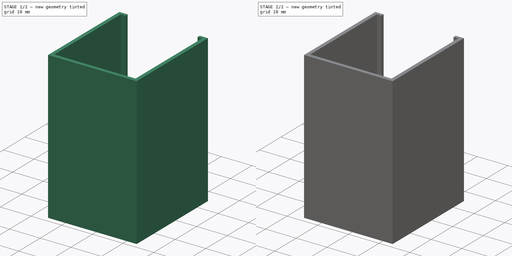
[diagram: build sequence overview — one tinted view per stage of 2, left to right]
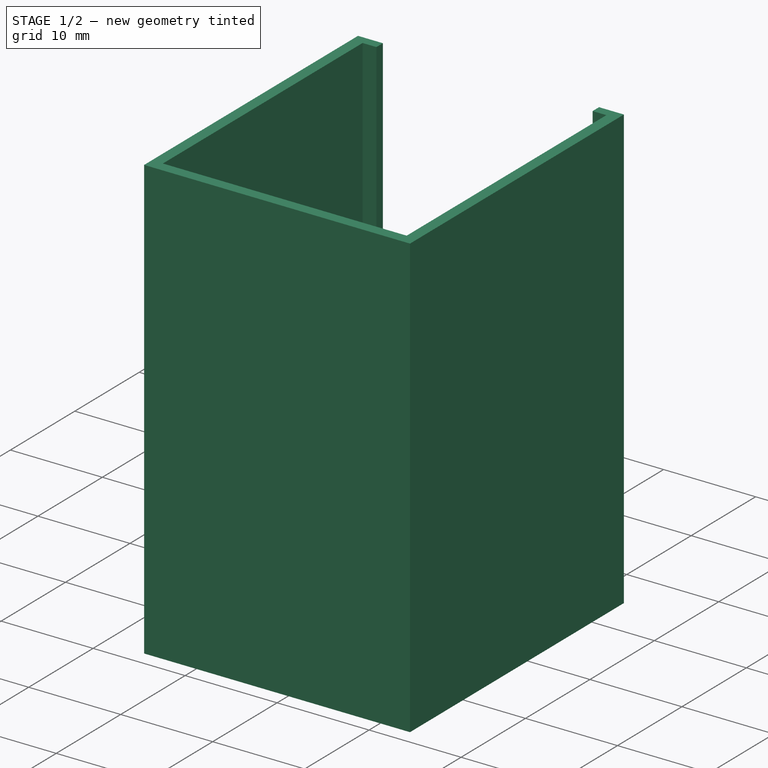
[diagram: stage 1 of 2 — iso view after this stage's code; geometry added in this stage tinted green]
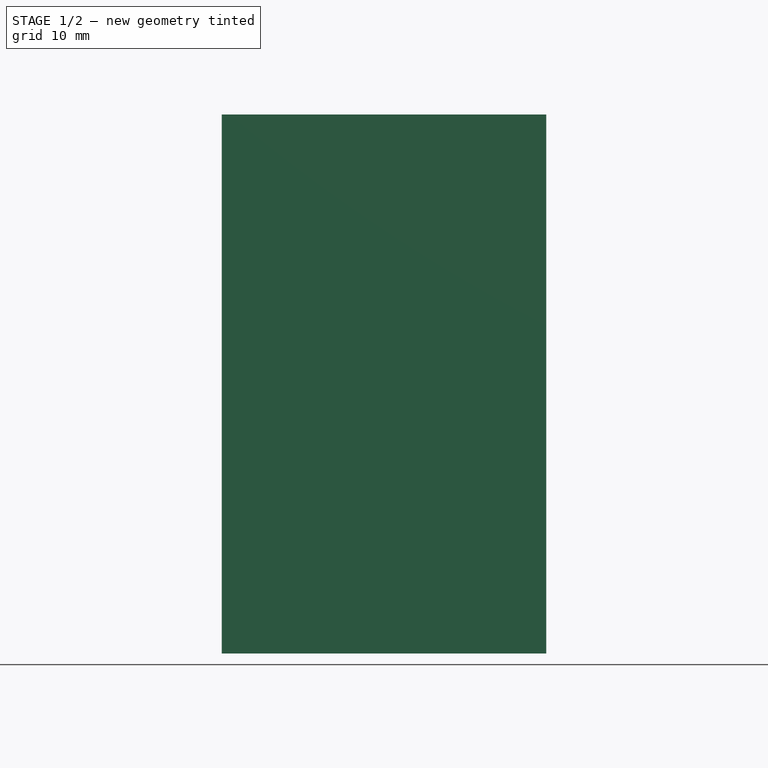
[diagram: stage 1 of 2 — front view after this stage's code; geometry added in this stage tinted green]
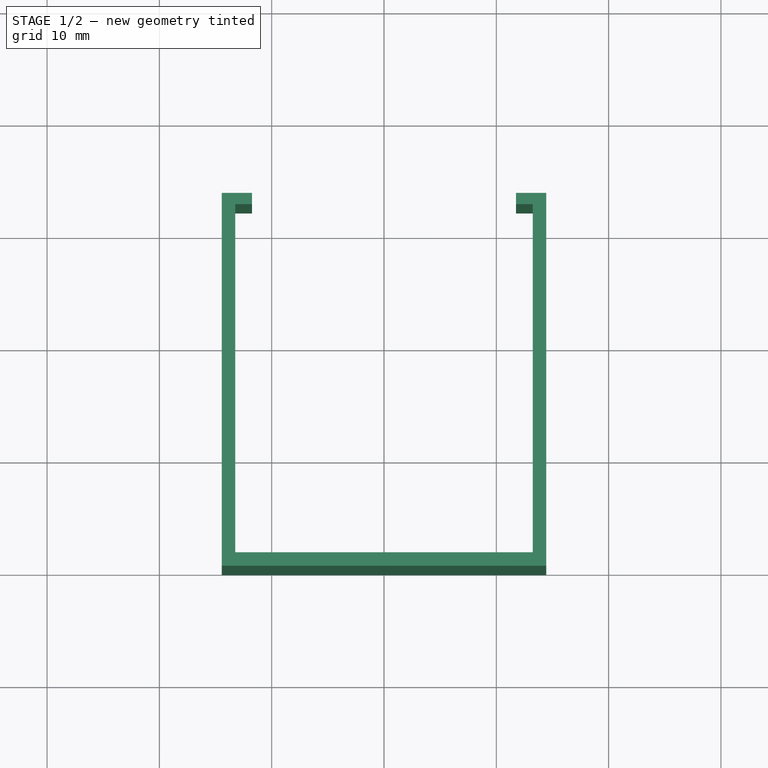
[diagram: stage 1 of 2 — top view after this stage's code; geometry added in this stage tinted green]
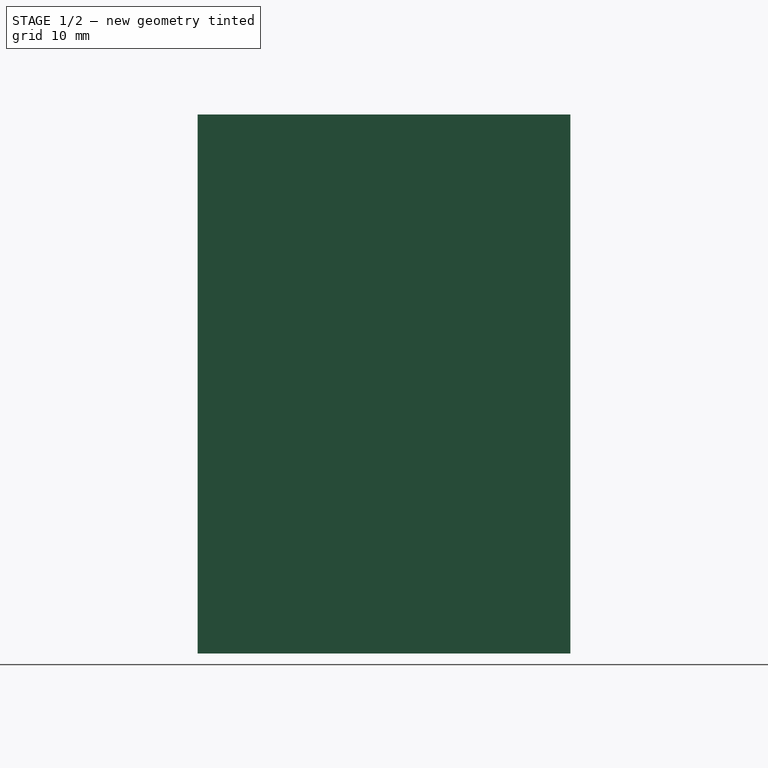
[diagram: stage 1 of 2 — right view after this stage's code; geometry added in this stage tinted green]
FCSTD DOCUMENT  (FreeCAD 0.20R29603 (Git))
Label: double_9v_taped_clip
License: All rights reserved
LicenseURL: http://en.wikipedia.org/wiki/All_rights_reserved
objects: Sketcher::SketchObject×2, PartDesign::Pad×2, PartDesign::Plane×1, PartDesign::Body×1
note: 8 computed .brp shape members not serialized (recipe doc carries the construction recipe); baked Part::Feature solids carry a one-line shape summary decoded from their .brp

FEATURE [Sketcher::SketchObject] Sketch
  FullyConstrained = true
  MapMode = 5
  Support = -> [XY_Plane]
  sketch-geometry (17):
    g0: LineSegment StartX=-14.45 StartY=0 StartZ=0 EndX=14.45 EndY=0 EndZ=0
    g1: LineSegment StartX=-14.45 StartY=0 StartZ=0 EndX=-14.45 EndY=33.2 EndZ=0
    g2: LineSegment StartX=14.45 StartY=0 StartZ=0 EndX=14.45 EndY=33.2 EndZ=0
    g3: LineSegment StartX=-14.45 StartY=33.2 StartZ=0 EndX=14.45 EndY=33.2 EndZ=0
    g4: LineSegment StartX=-13.25 StartY=33.2 StartZ=0 EndX=-13.25 EndY=1.2 EndZ=0
    g5: LineSegment StartX=13.25 StartY=33.2 StartZ=0 EndX=13.25 EndY=1.2 EndZ=0
    g6: LineSegment StartX=-13.25 StartY=1.2 StartZ=0 EndX=13.25 EndY=1.2 EndZ=0
    g7: LineSegment StartX=-14.45 StartY=33.2 StartZ=0 EndX=-13.25 EndY=33.2 EndZ=0
    g8: LineSegment StartX=14.45 StartY=33.2 StartZ=0 EndX=13.25 EndY=33.2 EndZ=0
    g9: LineSegment StartX=-13.25 StartY=32.2 StartZ=0 EndX=-13.25 EndY=1.2 EndZ=0
    g10: LineSegment StartX=13.25 StartY=32.2 StartZ=0 EndX=13.25 EndY=1.2 EndZ=0
    g11: LineSegment StartX=-13.25 StartY=33.2 StartZ=0 EndX=-11.75 EndY=33.2 EndZ=0
    g12: LineSegment StartX=-11.75 StartY=33.2 StartZ=0 EndX=-11.75 EndY=32.2 EndZ=0
    g13: LineSegment StartX=-11.75 StartY=32.2 StartZ=0 EndX=-13.25 EndY=32.2 EndZ=0
    g14: LineSegment StartX=13.25 StartY=33.2 StartZ=0 EndX=11.75 EndY=33.2 EndZ=0
    g15: LineSegment StartX=11.75 StartY=33.2 StartZ=0 EndX=11.75 EndY=32.2 EndZ=0
    g16: LineSegment StartX=11.75 StartY=32.2 StartZ=0 EndX=13.25 EndY=32.2 EndZ=0
  constraints (47):
    c: PointOnObject(g0,g-1)
    c: Symmetric(g0,g0,g-1)
    c: Coincident(g1,g0)
    c: Vertical(g1)
    c: Coincident(g2,g0)
    c: Vertical(g2)
    c: Coincident(g3,g1)
    c: Horizontal(g3)
    c: Coincident(g3,g2)
    c: PointOnObject(g4,g3)
    c: Vertical(g4)
    c: PointOnObject(g5,g3)
    c: Vertical(g5)
    c: Coincident(g6,g4)
    c: Coincident(g6,g5)
    c: Horizontal(g6)
    c: Distance(g4,g1) = 1.2
    c: Distance(g4,g5) = 26.5
    c: Coincident(g7,g1)
    c: Coincident(g7,g4)
    c: Coincident(g8,g2)
    c: Coincident(g8,g5)
    c: PointOnObject(g9,g4)
    c: PointOnObject(g10,g5)
    c: Distance(g6,g0) = 1.2
    c: Coincident(g9,g6)
    c: Coincident(g10,g6)
    c: Distance(g9) = 31
    c: Coincident(g7,g11)
    c: PointOnObject(g11,g3)
    c: Coincident(g11,g12)
    c: Vertical(g12)
    c: Coincident(g12,g13)
    c: Coincident(g13,g9)
    c: Horizontal(g13)
    c: Coincident(g8,g14)
    c: PointOnObject(g14,g3)
    c: Coincident(g14,g15)
    c: Vertical(g15)
    c: Coincident(g15,g16)
    c: Coincident(g16,g10)
    c: Horizontal(g16)
    c: Equal(g8,g7)
    c: Equal(g11,g14)
    c: Distance(g11) = 1.5
    c: Distance(g12) = 1
    c: Equal(g12,g15)
FEATURE [PartDesign::Pad] Pad  label="main_clip"
  Direction = (0,0,1)
  Length = 48
  Length2 = 10
  Profile = -> Sketch
  ReferenceAxis = -> Sketch [N_Axis]
  Type = 0
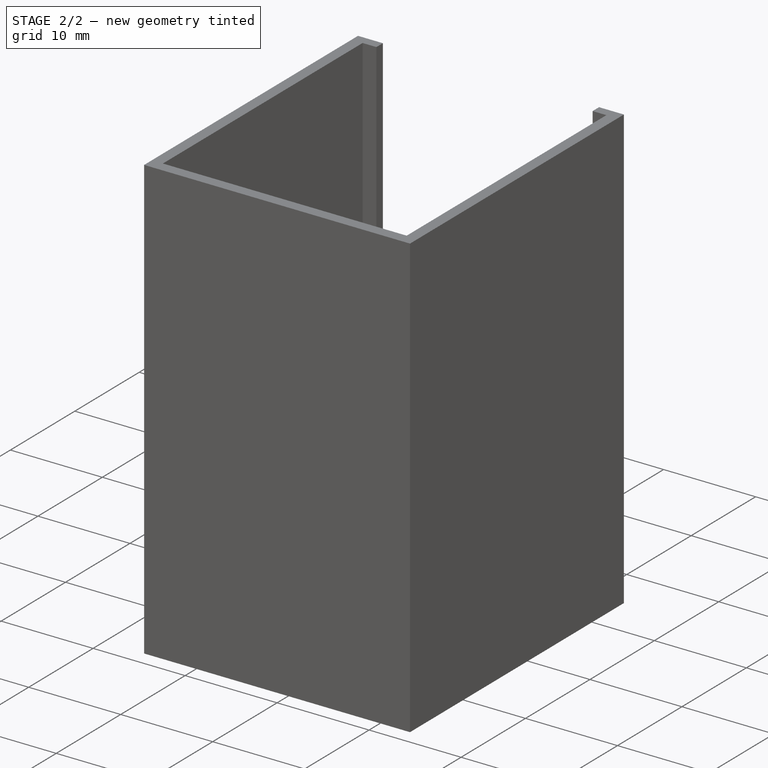
[diagram: stage 2 of 2 — iso view after this stage's code; geometry added in this stage tinted green]
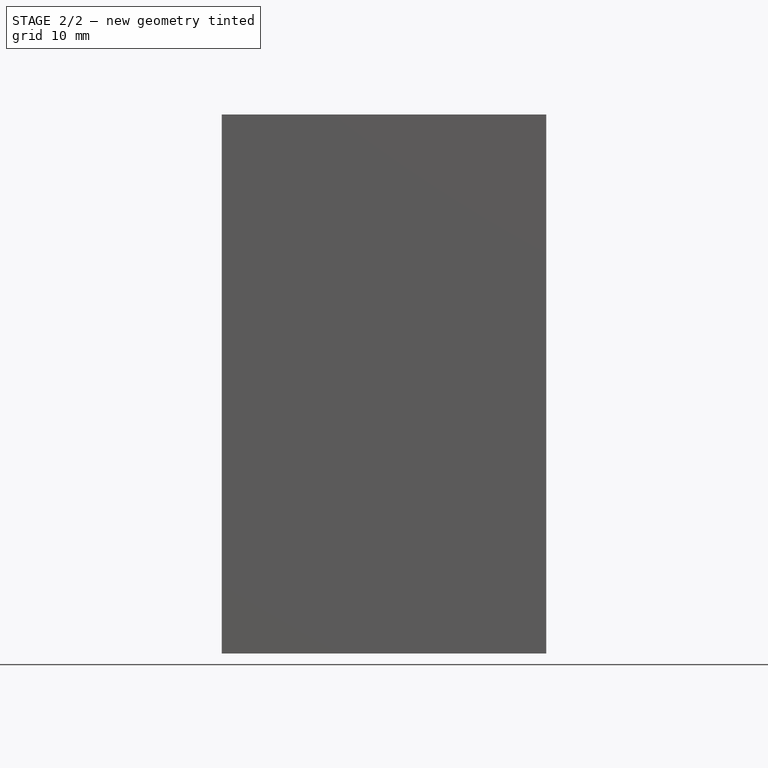
[diagram: stage 2 of 2 — front view after this stage's code; geometry added in this stage tinted green]
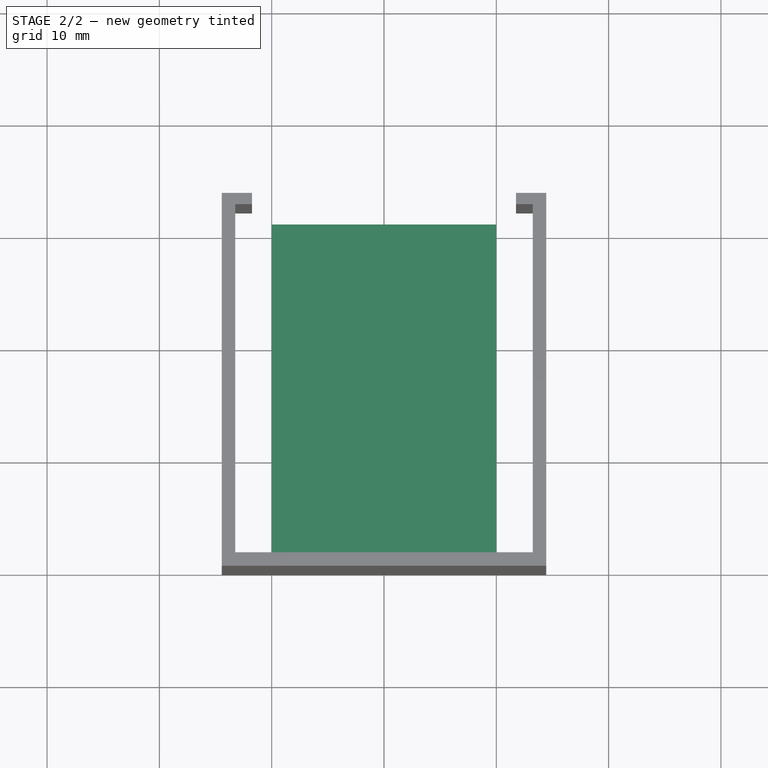
[diagram: stage 2 of 2 — top view after this stage's code; geometry added in this stage tinted green]
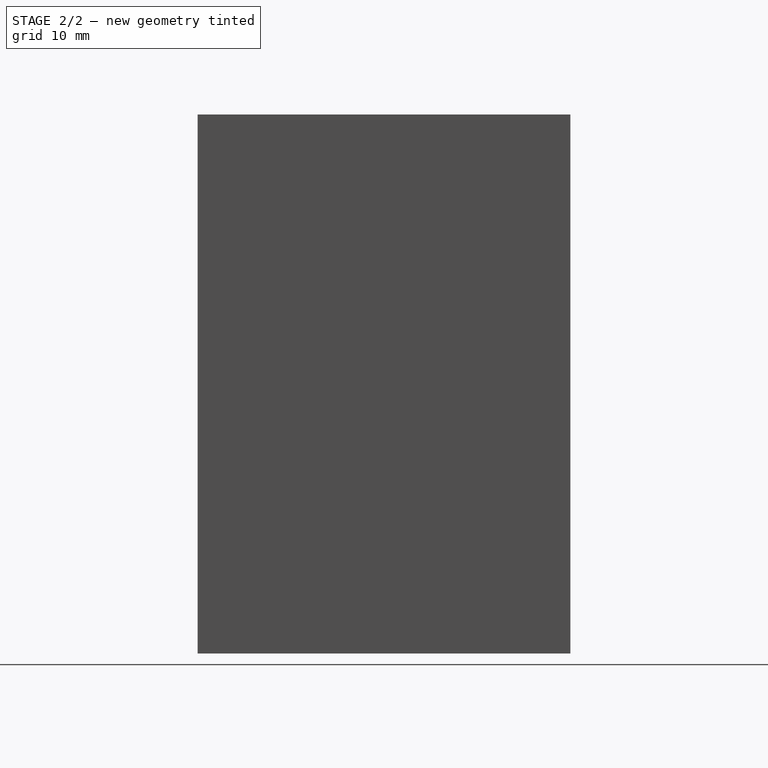
[diagram: stage 2 of 2 — right view after this stage's code; geometry added in this stage tinted green]
FEATURE [PartDesign::Plane] DatumPlane  label="bottom_plane"
  AttachmentOffset = pos=(0,0,-1.2) rot=(0,0,1;0rad)
  Length = 62.083
  MapMode = 5
  Placement = pos=(0,1.2,3e-16) rot=(1,0,0;1.5708rad)
  ResizeMode = 0
  Support = -> [XZ_Plane]
  Width = 85.083
FEATURE [Sketcher::SketchObject] Sketch001
  FullyConstrained = true
  MapMode = 5
  Placement = pos=(0,1.2,3e-16) rot=(1,0,0;1.5708rad)
  Support = -> [DatumPlane]
  sketch-geometry (4):
    g0: LineSegment StartX=10 StartY=1.2 StartZ=0 EndX=-10 EndY=1.2 EndZ=0
    g1: LineSegment StartX=-10 StartY=1.2 StartZ=0 EndX=-10 EndY=0 EndZ=0
    g2: LineSegment StartX=-10 StartY=0 StartZ=0 EndX=10 EndY=0 EndZ=0
    g3: LineSegment StartX=10 StartY=0 StartZ=0 EndX=10 EndY=1.2 EndZ=0
  constraints (11):
    c: Coincident(g0,g1)
    c: Coincident(g1,g2)
    c: Coincident(g2,g3)
    c: Coincident(g3,g0)
    c: Horizontal(g0)
    c: Horizontal(g2)
    c: Vertical(g1)
    c: Vertical(g3)
    c: Symmetric(g2,g1,g-1)
    c: Distance(g2) = 20
    c: Distance(g3) = 1.2
FEATURE [PartDesign::Pad] Pad001  label="bottom_lip"
  BaseFeature = -> Pad
  Direction = (0,1,0)
  Length = 30
  Length2 = 10
  Profile = -> Sketch001
  ReferenceAxis = -> Sketch001 [N_Axis]
  Type = 0
  UseCustomVector = true
FEATURE [PartDesign::Body] Body
  Group = -> [Sketch,Pad,DatumPlane,Sketch001,Pad001]
  Origin = -> Origin
  Tip = -> Pad001
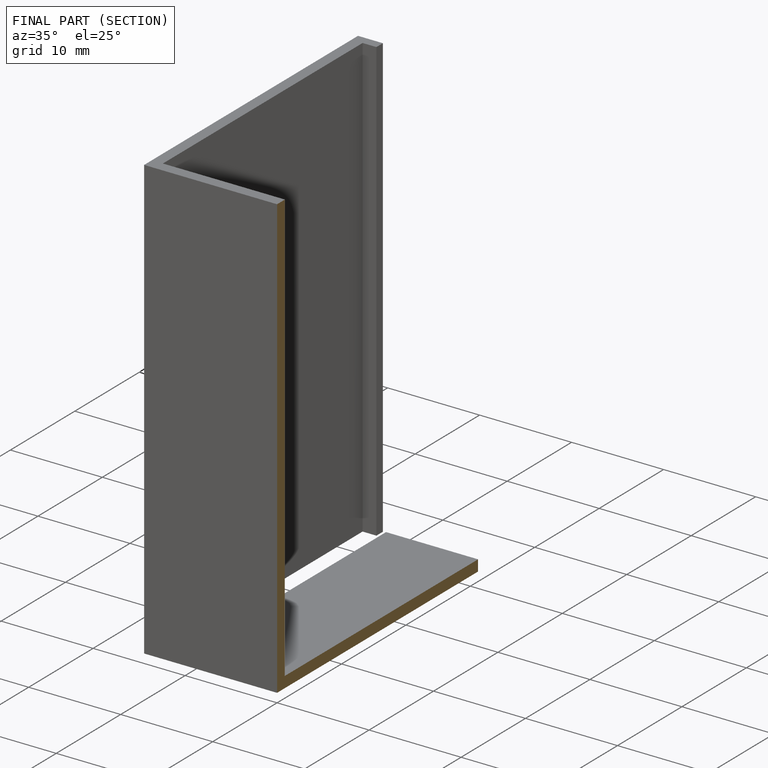
[diagram: finished part — half-section view (interior)]
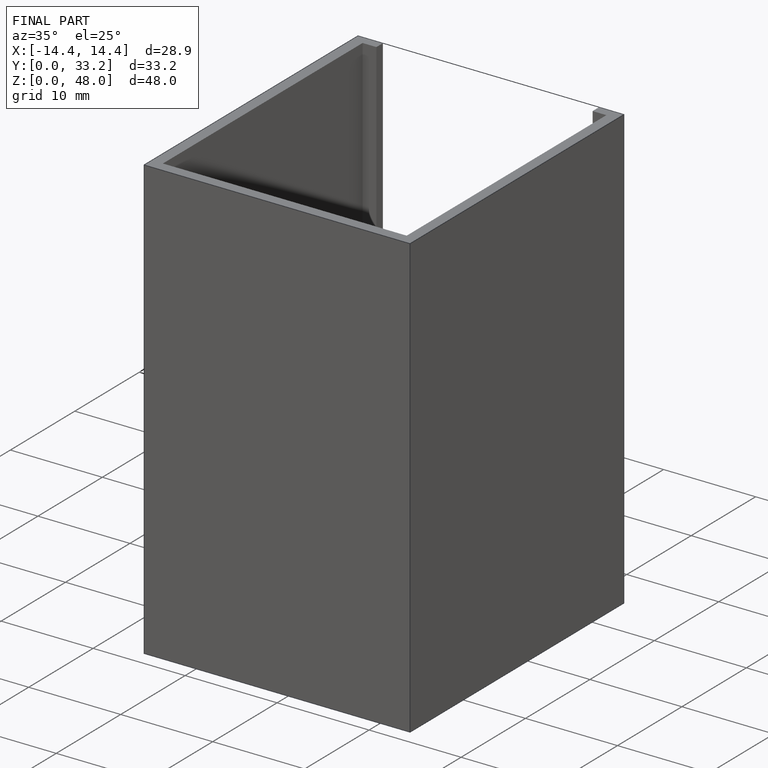
[diagram: finished part — iso view with bounding-box wireframe]
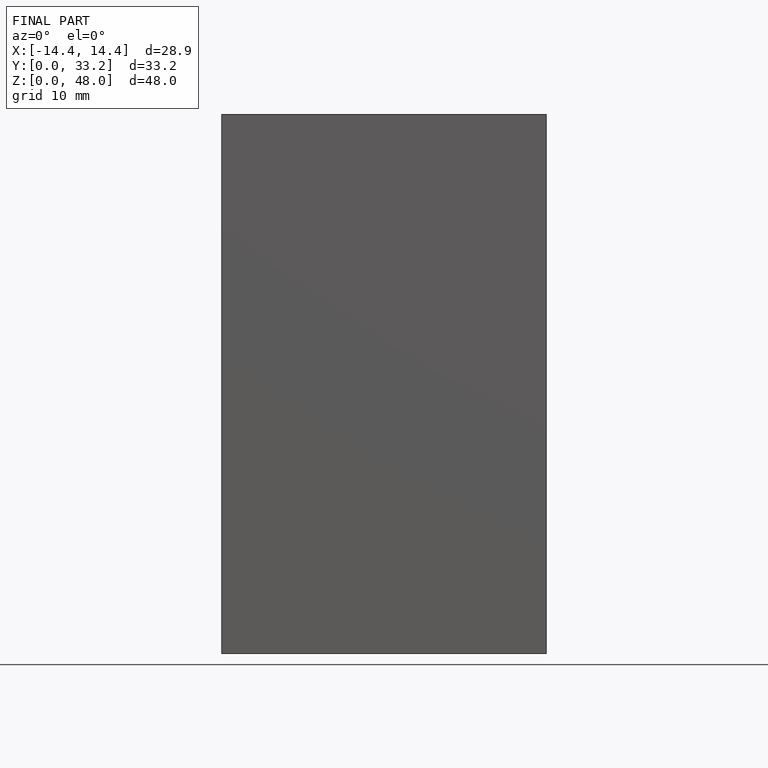
[diagram: finished part — front view with bounding-box wireframe]
